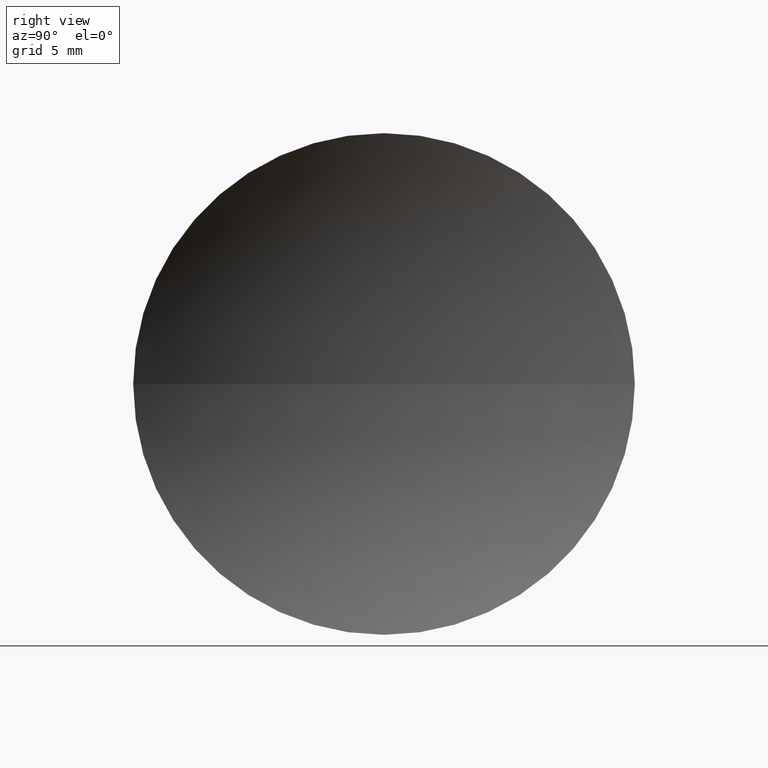
[diagram: clean part render]
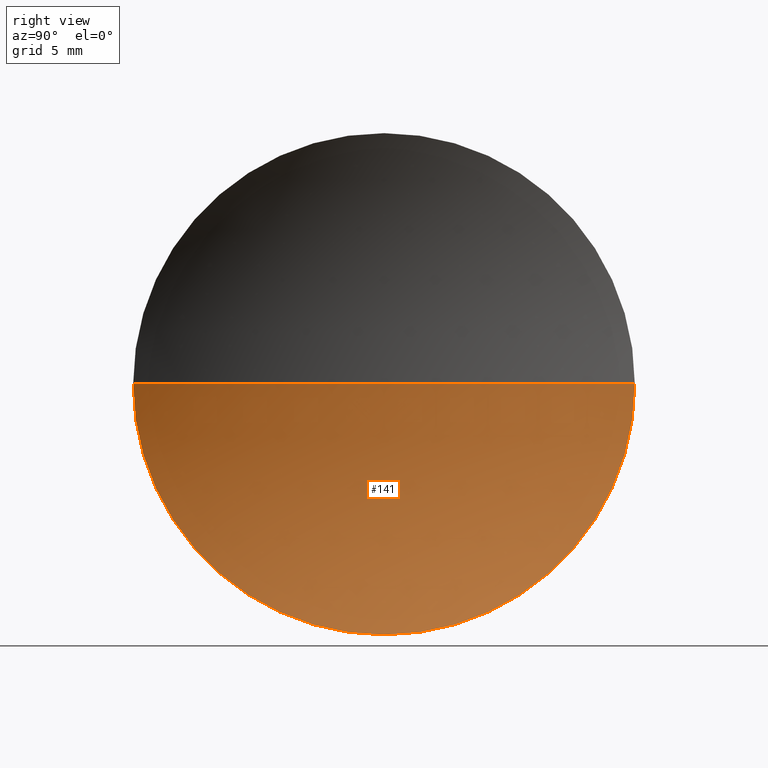
[diagram: same view with one face highlighted and labeled with its STEP entity id]
A machine part, right view. The second image highlights one B-rep face of the part: STEP entity #141.
In plain terms, the highlighted spherical surface has radius 26.4 mm.
Its self-contained STEP definition (entity closure, byte-faithful):
#4 = EDGE_CURVE ( 'NONE', #159, #125, #23, .T. ) ;
#6 = CARTESIAN_POINT ( 'NONE',  ( 100.5958981745881700, 39.47808229838992100, 0.0000000000000000000 ) ) ;
#7 = VERTEX_POINT ( 'NONE', #180 ) ;
#11 = FACE_OUTER_BOUND ( 'NONE', #38, .T. ) ;
#19 = VERTEX_POINT ( 'NONE', #166 ) ;
#20 = DIRECTION ( 'NONE',  ( 0.0000000000000000000, -1.224646799147353200E-016, 1.000000000000000000 ) ) ;
#23 = CIRCLE ( 'NONE', #37, 26.40000000000000600 ) ;
#27 = CARTESIAN_POINT ( 'NONE',  ( 100.5958981745881700, 52.17808229838991700, 0.0000000000000000000 ) ) ;
#30 = DIRECTION ( 'NONE',  ( -1.000000000000000000, 0.0000000000000000000, 0.0000000000000000000 ) ) ;
#32 = CIRCLE ( 'NONE', #212, 26.40000000000000600 ) ;
#33 = CARTESIAN_POINT ( 'NONE',  ( 123.7404439683599800, 52.17808229838991700, 0.0000000000000000000 ) ) ;
#35 = CARTESIAN_POINT ( 'NONE',  ( 123.7404439683599800, 52.17808229838991700, 0.0000000000000000000 ) ) ;
#36 = DIRECTION ( 'NONE',  ( 0.0000000000000000000, -1.000000000000000000, 0.0000000000000000000 ) ) ;
#37 = AXIS2_PLACEMENT_3D ( 'NONE', #33, #86, #30 ) ;
#38 = EDGE_LOOP ( 'NONE', ( #113, #176, #199, #132 ) ) ;
#48 = EDGE_CURVE ( 'NONE', #7, #125, #32, .T. ) ;
#86 = DIRECTION ( 'NONE',  ( 0.0000000000000000000, 0.0000000000000000000, -1.000000000000000000 ) ) ;
#93 = DIRECTION ( 'NONE',  ( 0.0000000000000000000, 0.0000000000000000000, 1.000000000000000000 ) ) ;
#95 = CARTESIAN_POINT ( 'NONE',  ( 100.5958981745881700, 52.17808229838991700, 0.0000000000000000000 ) ) ;
#109 = AXIS2_PLACEMENT_3D ( 'NONE', #95, #184, #222 ) ;
#113 = ORIENTED_EDGE ( 'NONE', *, *, #142, .F. ) ;
#124 = CARTESIAN_POINT ( 'NONE',  ( 97.34044396835997800, 52.17808229838991700, 0.0000000000000000000 ) ) ;
#125 = VERTEX_POINT ( 'NONE', #124 ) ;
#132 = ORIENTED_EDGE ( 'NONE', *, *, #193, .F. ) ;
#133 = CARTESIAN_POINT ( 'NONE',  ( 123.7404439683599800, 52.17808229838991700, 0.0000000000000000000 ) ) ;
#139 = CIRCLE ( 'NONE', #140, 12.69999999999999600 ) ;
#140 = AXIS2_PLACEMENT_3D ( 'NONE', #27, #210, #174 ) ;
#141 = ADVANCED_FACE ( 'NONE', ( #11 ), #218, .F. ) ;
#142 = EDGE_CURVE ( 'NONE', #7, #19, #149, .T. ) ;
#149 = CIRCLE ( 'NONE', #109, 12.69999999999999600 ) ;
#159 = VERTEX_POINT ( 'NONE', #6 ) ;
#166 = CARTESIAN_POINT ( 'NONE',  ( 100.5958981745881700, 52.17808229838991700, -12.69999999999999600 ) ) ;
#170 = DIRECTION ( 'NONE',  ( 0.0000000000000000000, -1.000000000000000000, -1.224646799147353200E-016 ) ) ;
#174 = DIRECTION ( 'NONE',  ( 0.0000000000000000000, 0.0000000000000000000, 1.000000000000000000 ) ) ;
#176 = ORIENTED_EDGE ( 'NONE', *, *, #48, .T. ) ;
#180 = CARTESIAN_POINT ( 'NONE',  ( 100.5958981745881700, 64.87808229838991300, 1.555301434917137800E-015 ) ) ;
#182 = AXIS2_PLACEMENT_3D ( 'NONE', #133, #93, #36 ) ;
#184 = DIRECTION ( 'NONE',  ( -1.000000000000000000, -0.0000000000000000000, -0.0000000000000000000 ) ) ;
#193 = EDGE_CURVE ( 'NONE', #19, #159, #139, .T. ) ;
#199 = ORIENTED_EDGE ( 'NONE', *, *, #4, .F. ) ;
#210 = DIRECTION ( 'NONE',  ( -1.000000000000000000, -0.0000000000000000000, -0.0000000000000000000 ) ) ;
#212 = AXIS2_PLACEMENT_3D ( 'NONE', #35, #20, #170 ) ;
#218 = SPHERICAL_SURFACE ( 'NONE', #182, 26.40000000000000600 ) ;
#222 = DIRECTION ( 'NONE',  ( 0.0000000000000000000, 0.0000000000000000000, 1.000000000000000000 ) ) ;